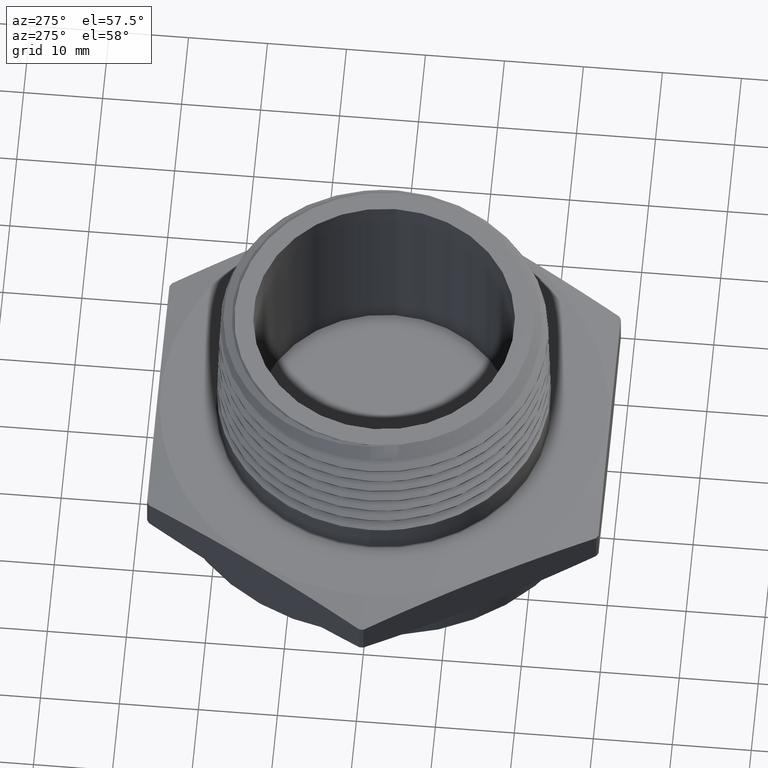
[diagram: clean part render]
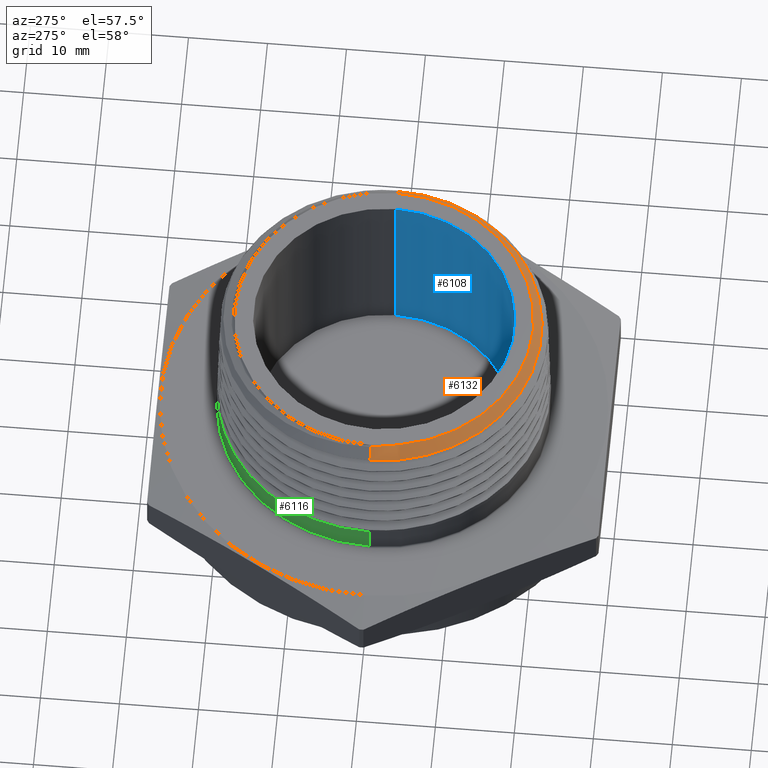
[diagram: same view with three faces highlighted in distinct colors, each labeled with its STEP entity id]
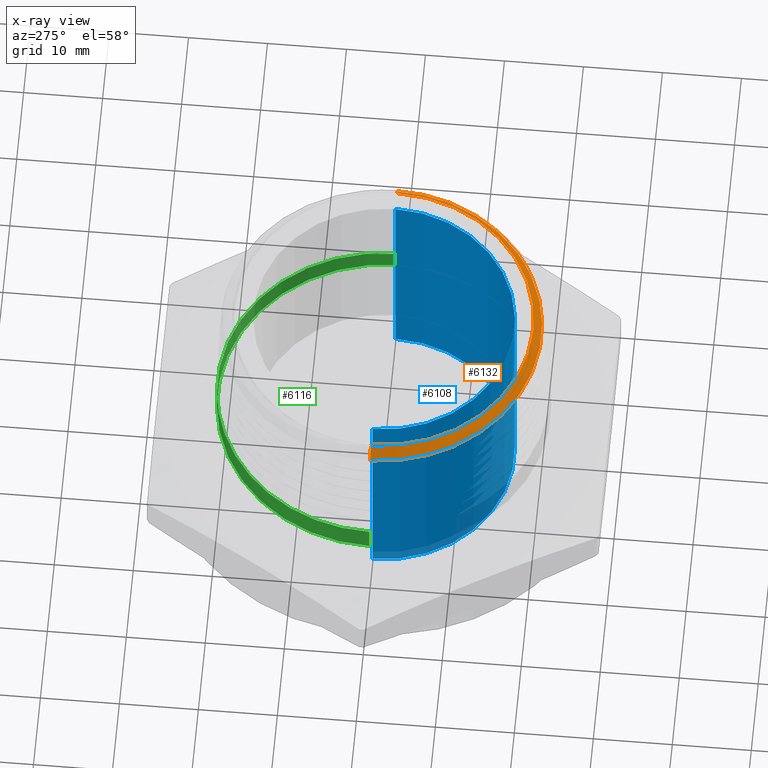
[diagram: x-ray of the same camera — body ghosted, the three highlighted faces saturated]
A machine part, auxiliary view with three faces highlighted in distinct colors.
The next image is the same camera in x-ray (body ghosted, the three faces saturated) — at least one of them is partly hidden behind the body in this view.
Their STEP definitions:

[orange] entity #6132 — the highlighted conical surface has half-angle 45 deg.
#27 = EDGE_LOOP ( 'NONE', ( #6029, #5997, #6067, #6080, #6013, #6052, #6060 ) ) ;
#96 = CIRCLE ( 'NONE', #4579, 0.7437499999999986900 ) ;
#102 = LINE ( 'NONE', #3841, #105 ) ;
#105 = VECTOR ( 'NONE', #3836, 39.37007874015748100 ) ;
#163 = LINE ( 'NONE', #4854, #166 ) ;
#165 = LINE ( 'NONE', #4864, #168 ) ;
#166 = VECTOR ( 'NONE', #4855, 39.37007874015748100 ) ;
#168 = VECTOR ( 'NONE', #4865, 39.37007874015748100 ) ;
#252 = B_SPLINE_CURVE_WITH_KNOTS ( 'NONE', 3,
 ( #4849, #4850, #4858, #4859 ),
 .UNSPECIFIED., .F., .F.,
 ( 4, 4 ),
 ( 0.0000000000000000000, 0.003072509283239645500 ),
 .UNSPECIFIED. ) ;
#253 = B_SPLINE_CURVE_WITH_KNOTS ( 'NONE', 3,
 ( #4857, #4856, #4862, #4863 ),
 .UNSPECIFIED., .F., .F.,
 ( 4, 4 ),
 ( 0.001635234342632144200, 0.004697026341895211800 ),
 .UNSPECIFIED. ) ;
#322 = CARTESIAN_POINT ( 'NONE',  ( -0.7437499999999986900, 0.0000000000000000000, 1.050000000000000000 ) ) ;
#329 = CARTESIAN_POINT ( 'NONE',  ( 0.7437499999999986900, 9.455255948274490100E-017, 1.050000000000000000 ) ) ;
#330 = CARTESIAN_POINT ( 'NONE',  ( -0.7350816407592215600, -0.1199707348374403300, 1.048942645176817300 ) ) ;
#332 = CARTESIAN_POINT ( 'NONE',  ( 0.7720989249177884200, 7.261560096844965400E-016, 1.021651075082210800 ) ) ;
#334 = CARTESIAN_POINT ( 'NONE',  ( -0.7448657824945851300, -1.153870544189449900E-012, 1.048884217505413600 ) ) ;
#336 = CARTESIAN_POINT ( 'NONE',  ( -0.7500252292204397900, -1.306323699306776900E-013, 1.043724770779559200 ) ) ;
#337 = CARTESIAN_POINT ( 'NONE',  ( -0.8000725450993546600, -2.945273618169283600E-016, 0.9936774549006445200 ) ) ;
#926 = DIRECTION ( 'NONE',  ( -1.000000000000000000, 0.0000000000000000000, 0.0000000000000000000 ) ) ;
#927 = CARTESIAN_POINT ( 'NONE',  ( 0.0000000000000000000, 0.0000000000000000000, 0.9684672068725388400 ) ) ;
#928 = DIRECTION ( 'NONE',  ( -0.0000000000000000000, -0.0000000000000000000, -1.000000000000000000 ) ) ;
#1032 = FACE_OUTER_BOUND ( 'NONE', #27, .T. ) ;
#1062 = CONICAL_SURFACE ( 'NONE', #2778, 0.8252827931274610000, 0.7853981633974541600 ) ;
#1589 = CARTESIAN_POINT ( 'NONE',  ( 0.6140114442139216200, -0.4805881770603531700, 1.015736879004241100 ) ) ;
#2778 = AXIS2_PLACEMENT_3D ( 'NONE', #927, #928, #926 ) ;
#3836 = DIRECTION ( 'NONE',  ( 0.7071067811865516800, 8.659560562354983400E-017, -0.7071067811865433500 ) ) ;
#3837 = CARTESIAN_POINT ( 'NONE',  ( 0.0000000000000000000, 0.0000000000000000000, 1.050000000000000000 ) ) ;
#3838 = DIRECTION ( 'NONE',  ( -0.0000000000000000000, -0.0000000000000000000, -1.000000000000000000 ) ) ;
#3839 = DIRECTION ( 'NONE',  ( -1.000000000000000000, 0.0000000000000000000, 0.0000000000000000000 ) ) ;
#3841 = CARTESIAN_POINT ( 'NONE',  ( 0.8252827931274610000, 1.010679930994932300E-016, 0.9684672068725388400 ) ) ;
#4249 = VERTEX_POINT ( 'NONE', #322 ) ;
#4256 = VERTEX_POINT ( 'NONE', #329 ) ;
#4257 = VERTEX_POINT ( 'NONE', #330 ) ;
#4259 = VERTEX_POINT ( 'NONE', #332 ) ;
#4261 = VERTEX_POINT ( 'NONE', #334 ) ;
#4263 = VERTEX_POINT ( 'NONE', #336 ) ;
#4264 = VERTEX_POINT ( 'NONE', #337 ) ;
#4474 = EDGE_CURVE ( 'NONE', #4264, #4259, #5971, .T. ) ;
#4493 = EDGE_CURVE ( 'NONE', #4256, #4249, #96, .T. ) ;
#4495 = EDGE_CURVE ( 'NONE', #4256, #4259, #102, .T. ) ;
#4549 = EDGE_CURVE ( 'NONE', #4263, #4264, #163, .T. ) ;
#4550 = EDGE_CURVE ( 'NONE', #4257, #4263, #252, .T. ) ;
#4551 = EDGE_CURVE ( 'NONE', #4261, #4257, #253, .T. ) ;
#4552 = EDGE_CURVE ( 'NONE', #4249, #4261, #165, .T. ) ;
#4579 = AXIS2_PLACEMENT_3D ( 'NONE', #3837, #3838, #3839 ) ;
#4849 = CARTESIAN_POINT ( 'NONE',  ( -0.7350816407592215600, -0.1199707348374403300, 1.048942645176817300 ) ) ;
#4850 = CARTESIAN_POINT ( 'NONE',  ( -0.7433365841890087200, -0.08029810545622517700, 1.047185811208313900 ) ) ;
#4854 = CARTESIAN_POINT ( 'NONE',  ( -0.8252827931274610000, 0.0000000000000000000, 0.9684672068725388400 ) ) ;
#4855 = DIRECTION ( 'NONE',  ( -0.7071067811865516800, 0.0000000000000000000, -0.7071067811865433500 ) ) ;
#4856 = CARTESIAN_POINT ( 'NONE',  ( -0.7448466354825504800, -0.04015589362925806700, 1.048903364517386200 ) ) ;
#4857 = CARTESIAN_POINT ( 'NONE',  ( -0.7448657824945851300, -1.153870544189449900E-012, 1.048884217505413600 ) ) ;
#4858 = CARTESIAN_POINT ( 'NONE',  ( -0.7482915950761124300, -0.04030481071349607800, 1.045458404923879500 ) ) ;
#4859 = CARTESIAN_POINT ( 'NONE',  ( -0.7500252292204397900, -1.306323699306776900E-013, 1.043724770779559200 ) ) ;
#4862 = CARTESIAN_POINT ( 'NONE',  ( -0.7415704726945593400, -0.08031670776837623900, 1.048925864383003700 ) ) ;
#4863 = CARTESIAN_POINT ( 'NONE',  ( -0.7350816407592215600, -0.1199707348374403300, 1.048942645176817300 ) ) ;
#4864 = CARTESIAN_POINT ( 'NONE',  ( -0.8252827931274610000, 0.0000000000000000000, 0.9684672068725388400 ) ) ;
#4865 = DIRECTION ( 'NONE',  ( -0.7071067811865516800, 0.0000000000000000000, -0.7071067811865433500 ) ) ;
#5971 = B_SPLINE_CURVE_WITH_KNOTS ( 'NONE', 3,
 ( #6392, #6393, #6429, #6430, #6431, #6432, #6433, #6434, #6435, #6436, #6437, #6438, #6439, #6440, #6441, #6442, #6443, #6444, #6445, #6446, #6447, #6448, #6449, #6450, #6451, #6452, #6453, #6454, #6455, #6456, #6457, #6458, #6459, #6460, #6461, #6462, #6463, #6464, #6465, #6466, #1589, #6785, #6786, #6787, #6788, #6789, #6790, #6791, #6792, #6793, #6794, #6795, #6796, #6797 ),
 .UNSPECIFIED., .F., .F.,
 ( 4, 2, 2, 2, 2, 2, 2, 2, 2, 2, 2, 2, 2, 2, 2, 2, 2, 2, 2, 2, 2, 2, 2, 2, 2, 2, 4 ),
 ( 0.03373885606067497000, 0.03767705657792178000, 0.03964615683654518200, 0.04161525709516858400, 0.04358435735379199300, 0.04555345761241539500, 0.04949165812966221900, 0.05146075838828562100, 0.05342985864690903700, 0.05736805916415586800, 0.05933715942277927000, 0.06130625968140268600, 0.06524446019864951800, 0.06721356045727293300, 0.06918266071589633500, 0.07115176097451975100, 0.07312086123314318100, 0.07705906175039001200, 0.07902816200901341400, 0.08099726226763684400, 0.08493546278488367500, 0.08690456304350710500, 0.08887366330213050700, 0.09084276356075393600, 0.09182731369006563700, 0.09281186381937735200, 0.09675006433662419700 ),
 .UNSPECIFIED. ) ;
#5997 = ORIENTED_EDGE ( 'NONE', *, *, #4493, .T. ) ;
#6013 = ORIENTED_EDGE ( 'NONE', *, *, #4550, .T. ) ;
#6029 = ORIENTED_EDGE ( 'NONE', *, *, #4495, .F. ) ;
#6052 = ORIENTED_EDGE ( 'NONE', *, *, #4549, .T. ) ;
#6060 = ORIENTED_EDGE ( 'NONE', *, *, #4474, .T. ) ;
#6067 = ORIENTED_EDGE ( 'NONE', *, *, #4552, .T. ) ;
#6080 = ORIENTED_EDGE ( 'NONE', *, *, #4551, .T. ) ;
#6132 = ADVANCED_FACE ( 'NONE', ( #1032 ), #1062, .T. ) ;
#6392 = CARTESIAN_POINT ( 'NONE',  ( -0.8000725450993546600, -2.945273618169283600E-016, 0.9936774549006445200 ) ) ;
#6393 = CARTESIAN_POINT ( 'NONE',  ( -0.7995010394934186600, -0.05135125499814624500, 0.9942489605065807400 ) ) ;
#6429 = CARTESIAN_POINT ( 'NONE',  ( -0.7940340887413702700, -0.1024069163434764600, 0.9948185086998861900 ) ) ;
#6430 = CARTESIAN_POINT ( 'NONE',  ( -0.7782702435371777700, -0.1785335459317709500, 0.9956852449227142600 ) ) ;
#6431 = CARTESIAN_POINT ( 'NONE',  ( -0.7717736674808471900, -0.2036417803274090700, 0.9959754583561712900 ) ) ;
#6432 = CARTESIAN_POINT ( 'NONE',  ( -0.7565183437960714100, -0.2527233594338484900, 0.9965494281946676300 ) ) ;
#6433 = CARTESIAN_POINT ( 'NONE',  ( -0.7477401969685372200, -0.2767935613644513200, 0.9968342910240984800 ) ) ;
#6434 = CARTESIAN_POINT ( 'NONE',  ( -0.7279026411649343100, -0.3240007726664148000, 0.9974062770131713100 ) ) ;
#6435 = CARTESIAN_POINT ( 'NONE',  ( -0.7168428438579196300, -0.3471376175476593200, 0.9976938650431600400 ) ) ;
#6436 = CARTESIAN_POINT ( 'NONE',  ( -0.6924043954523126900, -0.3924627504514535100, 0.9982702459967631700 ) ) ;
#6437 = CARTESIAN_POINT ( 'NONE',  ( -0.6789407664004574200, -0.4147687249460877400, 0.9985605984621880300 ) ) ;
#6438 = CARTESIAN_POINT ( 'NONE',  ( -0.6356831047645040700, -0.4790867144281957800, 0.9994281577965273800 ) ) ;
#6439 = CARTESIAN_POINT ( 'NONE',  ( -0.6030797548661849200, -0.5186164357168986400, 1.000001002847225900 ) ) ;
#6440 = CARTESIAN_POINT ( 'NONE',  ( -0.5486425524703911800, -0.5729898921742933000, 1.000863889007945300 ) ) ;
#6441 = CARTESIAN_POINT ( 'NONE',  ( -0.5295670262320041300, -0.5902872581388665100, 1.001153903944223200 ) ) ;
#6442 = CARTESIAN_POINT ( 'NONE',  ( -0.4894981070565390100, -0.6231759356478403500, 1.001736785039513800 ) ) ;
#6443 = CARTESIAN_POINT ( 'NONE',  ( -0.4686744645534644000, -0.6386154498233583800, 1.002026999532649800 ) ) ;
#6444 = CARTESIAN_POINT ( 'NONE',  ( -0.4045976601359592100, -0.6814657327958765200, 1.002893335661676500 ) ) ;
#6445 = CARTESIAN_POINT ( 'NONE',  ( -0.3594712077528927600, -0.7056763466819755400, 1.003468585243130900 ) ) ;
#6446 = CARTESIAN_POINT ( 'NONE',  ( -0.2881359676426911200, -0.7353985297403844400, 1.004338923213130800 ) ) ;
#6447 = CARTESIAN_POINT ( 'NONE',  ( -0.2636078107376989600, -0.7442324936766820900, 1.004633808345518400 ) ) ;
#6448 = CARTESIAN_POINT ( 'NONE',  ( -0.2142148687681867900, -0.7593173182223917900, 1.005217133748406200 ) ) ;
#6449 = CARTESIAN_POINT ( 'NONE',  ( -0.1893072990659328800, -0.7656027016200678300, 1.005506027837716600 ) ) ;
#6450 = CARTESIAN_POINT ( 'NONE',  ( -0.1139648589991535100, -0.7807679318557804200, 1.006373476174577500 ) ) ;
#6451 = CARTESIAN_POINT ( 'NONE',  ( -0.06291636317491269800, -0.7859932417524542200, 1.006952488512338400 ) ) ;
#6452 = CARTESIAN_POINT ( 'NONE',  ( 0.01493704495547304300, -0.7862032535187518700, 1.007833152638050600 ) ) ;
#6453 = CARTESIAN_POINT ( 'NONE',  ( 0.04076231590646407100, -0.7849850354311391800, 1.008126884703635500 ) ) ;
#6454 = CARTESIAN_POINT ( 'NONE',  ( 0.09188691878156923800, -0.7800670717165672000, 1.008709587499656100 ) ) ;
#6455 = CARTESIAN_POINT ( 'NONE',  ( 0.1172332296899092900, -0.7763674585781188400, 1.008998946575379000 ) ) ;
#6456 = CARTESIAN_POINT ( 'NONE',  ( 0.1674962650438669400, -0.7665011202537386200, 1.009579660646132200 ) ) ;
#6457 = CARTESIAN_POINT ( 'NONE',  ( 0.1924128379446779200, -0.7603335853497288400, 1.009871927844164600 ) ) ;
#6458 = CARTESIAN_POINT ( 'NONE',  ( 0.2418073867457303000, -0.7454796509809499300, 1.010458423955977100 ) ) ;
#6459 = CARTESIAN_POINT ( 'NONE',  ( 0.2663854605241271500, -0.7367408108859333500, 1.010753745223245100 ) ) ;
#6460 = CARTESIAN_POINT ( 'NONE',  ( 0.3379126396251531100, -0.7072358151988879000, 1.011632971492044500 ) ) ;
#6461 = CARTESIAN_POINT ( 'NONE',  ( 0.3831082642191601700, -0.6831276612361127900, 1.012214708073295100 ) ) ;
#6462 = CARTESIAN_POINT ( 'NONE',  ( 0.4472094830873277200, -0.6403825001561148600, 1.013092209744603600 ) ) ;
#6463 = CARTESIAN_POINT ( 'NONE',  ( 0.4679974119653489400, -0.6249931683186620300, 1.013388045679300700 ) ) ;
#6464 = CARTESIAN_POINT ( 'NONE',  ( 0.5081093566482232100, -0.5920626902193758500, 1.013980746205498600 ) ) ;
#6465 = CARTESIAN_POINT ( 'NONE',  ( 0.5271830672916592000, -0.5747342995481530300, 1.014273747880568800 ) ) ;
#6466 = CARTESIAN_POINT ( 'NONE',  ( 0.5815479684540386700, -0.5202393922710533100, 1.015152562750432300 ) ) ;
#6785 = CARTESIAN_POINT ( 'NONE',  ( 0.6569054180533890900, -0.4160140446794835500, 1.016624041509416300 ) ) ;
#6786 = CARTESIAN_POINT ( 'NONE',  ( 0.6702188703207920800, -0.3936101436854554400, 1.016923501535428800 ) ) ;
#6787 = CARTESIAN_POINT ( 'NONE',  ( 0.6942912565249693700, -0.3480870548169053300, 1.017514162133252600 ) ) ;
#6788 = CARTESIAN_POINT ( 'NONE',  ( 0.7051366861076632200, -0.3248468621399380800, 1.017807013635724200 ) ) ;
#6789 = CARTESIAN_POINT ( 'NONE',  ( 0.7244781737496215300, -0.2774221900850753500, 1.018394607975132900 ) ) ;
#6790 = CARTESIAN_POINT ( 'NONE',  ( 0.7329737858210986200, -0.2532375373375131400, 1.018689824709823300 ) ) ;
#6791 = CARTESIAN_POINT ( 'NONE',  ( 0.7439322965675798600, -0.2162431382243837900, 1.019133339785908100 ) ) ;
#6792 = CARTESIAN_POINT ( 'NONE',  ( 0.7472870496545094300, -0.2037918617576629800, 1.019281355391039100 ) ) ;
#6793 = CARTESIAN_POINT ( 'NONE',  ( 0.7533890235821915100, -0.1786451284370262100, 1.019578360923202800 ) ) ;
#6794 = CARTESIAN_POINT ( 'NONE',  ( 0.7561402299660628900, -0.1659213765424134300, 1.019727679018047000 ) ) ;
#6795 = CARTESIAN_POINT ( 'NONE',  ( 0.7682182195991190700, -0.1023634847434561800, 1.020471808845154100 ) ) ;
#6796 = CARTESIAN_POINT ( 'NONE',  ( 0.7726904494513401300, -0.05129167824074307900, 1.021059550548659300 ) ) ;
#6797 = CARTESIAN_POINT ( 'NONE',  ( 0.7720989249177884200, 7.261560096844965400E-016, 1.021651075082210800 ) ) ;

[blue] entity #6108 — the highlighted cylindrical surface (partial cylindrical patch) has radius 16.51 mm, axis along (0, 0, -1).
#36 = EDGE_LOOP ( 'NONE', ( #6055, #6085, #6083, #6070 ) ) ;
#154 = CIRCLE ( 'NONE', #4606, 0.6500000000000000200 ) ;
#155 = LINE ( 'NONE', #4825, #157 ) ;
#157 = VECTOR ( 'NONE', #4832, 39.37007874015748100 ) ;
#159 = CIRCLE ( 'NONE', #4607, 0.6500000000000000200 ) ;
#162 = LINE ( 'NONE', #4844, #164 ) ;
#164 = VECTOR ( 'NONE', #4845, 39.37007874015748100 ) ;
#286 = CARTESIAN_POINT ( 'NONE',  ( -0.6500000000000000200, 0.0000000000000000000, 1.050000000000000000 ) ) ;
#287 = CARTESIAN_POINT ( 'NONE',  ( -0.6500000000000000200, 0.0000000000000000000, -0.1499999999999999900 ) ) ;
#852 = DIRECTION ( 'NONE',  ( -1.000000000000000000, 0.0000000000000000000, 0.0000000000000000000 ) ) ;
#853 = CARTESIAN_POINT ( 'NONE',  ( 3.673940397442165500E-018, 0.0000000000000000000, 2.973330444827409400 ) ) ;
#854 = DIRECTION ( 'NONE',  ( 0.0000000000000000000, 0.0000000000000000000, -1.000000000000000000 ) ) ;
#1010 = FACE_OUTER_BOUND ( 'NONE', #36, .T. ) ;
#1013 = CYLINDRICAL_SURFACE ( 'NONE', #4656, 0.6500000000000000200 ) ;
#4183 = VERTEX_POINT ( 'NONE', #7628 ) ;
#4184 = VERTEX_POINT ( 'NONE', #7629 ) ;
#4187 = VERTEX_POINT ( 'NONE', #287 ) ;
#4189 = VERTEX_POINT ( 'NONE', #286 ) ;
#4543 = EDGE_CURVE ( 'NONE', #4189, #4187, #155, .T. ) ;
#4546 = EDGE_CURVE ( 'NONE', #4184, #4187, #154, .T. ) ;
#4547 = EDGE_CURVE ( 'NONE', #4183, #4189, #159, .T. ) ;
#4548 = EDGE_CURVE ( 'NONE', #4183, #4184, #162, .T. ) ;
#4606 = AXIS2_PLACEMENT_3D ( 'NONE', #4846, #4847, #4848 ) ;
#4607 = AXIS2_PLACEMENT_3D ( 'NONE', #4851, #4852, #4853 ) ;
#4656 = AXIS2_PLACEMENT_3D ( 'NONE', #853, #854, #852 ) ;
#4825 = CARTESIAN_POINT ( 'NONE',  ( -0.6500000000000000200, 0.0000000000000000000, 2.973330444827409400 ) ) ;
#4832 = DIRECTION ( 'NONE',  ( 0.0000000000000000000, 0.0000000000000000000, -1.000000000000000000 ) ) ;
#4844 = CARTESIAN_POINT ( 'NONE',  ( 0.6500000000000000200, 7.960204194457796700E-017, 2.973330444827409400 ) ) ;
#4845 = DIRECTION ( 'NONE',  ( 0.0000000000000000000, 0.0000000000000000000, -1.000000000000000000 ) ) ;
#4846 = CARTESIAN_POINT ( 'NONE',  ( 3.673940397442165500E-018, 0.0000000000000000000, -0.1499999999999999900 ) ) ;
#4847 = DIRECTION ( 'NONE',  ( 0.0000000000000000000, 0.0000000000000000000, -1.000000000000000000 ) ) ;
#4848 = DIRECTION ( 'NONE',  ( -1.000000000000000000, 0.0000000000000000000, 0.0000000000000000000 ) ) ;
#4851 = CARTESIAN_POINT ( 'NONE',  ( 3.673940397442165500E-018, 0.0000000000000000000, 1.050000000000000000 ) ) ;
#4852 = DIRECTION ( 'NONE',  ( -0.0000000000000000000, -0.0000000000000000000, -1.000000000000000000 ) ) ;
#4853 = DIRECTION ( 'NONE',  ( 1.000000000000000000, 0.0000000000000000000, 0.0000000000000000000 ) ) ;
#6055 = ORIENTED_EDGE ( 'NONE', *, *, #4547, .F. ) ;
#6070 = ORIENTED_EDGE ( 'NONE', *, *, #4543, .F. ) ;
#6083 = ORIENTED_EDGE ( 'NONE', *, *, #4546, .T. ) ;
#6085 = ORIENTED_EDGE ( 'NONE', *, *, #4548, .T. ) ;
#6108 = ADVANCED_FACE ( 'NONE', ( #1010 ), #1013, .F. ) ;
#7628 = CARTESIAN_POINT ( 'NONE',  ( 0.6500000000000000200, 7.960204194457796700E-017, 1.050000000000000000 ) ) ;
#7629 = CARTESIAN_POINT ( 'NONE',  ( 0.6500000000000000200, 7.960204194457796700E-017, -0.1499999999999999900 ) ) ;

[green] entity #6116 — the highlighted cylindrical surface (partial cylindrical patch) has radius 21.082 mm, axis along (-0, -0, -1).
#45 = EDGE_LOOP ( 'NONE', ( #5948, #5947, #5946, #5945, #5942 ) ) ;
#104 = LINE ( 'NONE', #3958, #112 ) ;
#106 = LINE ( 'NONE', #3961, #114 ) ;
#108 = CIRCLE ( 'NONE', #4581, 0.8300000000000001800 ) ;
#112 = VECTOR ( 'NONE', #3959, 39.37007874015748100 ) ;
#113 = CIRCLE ( 'NONE', #4582, 0.8300000000000001800 ) ;
#114 = VECTOR ( 'NONE', #4693, 39.37007874015748100 ) ;
#245 = B_SPLINE_CURVE_WITH_KNOTS ( 'NONE', 3,
 ( #3903, #3933, #3962, #3963, #3964, #3965, #3966, #3967, #3968, #3969, #3970, #3971, #3972, #3973, #3974, #3975, #3976, #3977, #4673, #4674, #4675, #4676, #4677, #4678, #4679, #4680, #4681, #4682, #4683, #4684, #4685, #4686, #4687, #4688, #4689, #4690, #4691, #4692 ),
 .UNSPECIFIED., .F., .F.,
 ( 4, 2, 2, 2, 2, 2, 2, 2, 2, 2, 2, 2, 2, 2, 2, 2, 2, 2, 4 ),
 ( 0.0000000000000000000, 0.002588556071354502300, 0.005177112142709004500, 0.01035422428541801300, 0.01164850232109526300, 0.01294278035677251400, 0.01553133642812702000, 0.01811989249948152400, 0.01941417053515878000, 0.02070844857083603200, 0.02329700464219053600, 0.02459128267786778900, 0.02588556071354503700, 0.03106267285625404600, 0.03235695089193130200, 0.03365122892760855100, 0.03623978499896304800, 0.03882834107031755300, 0.04141689714167205700 ),
 .UNSPECIFIED. ) ;
#876 = DIRECTION ( 'NONE',  ( -1.000000000000000000, 0.0000000000000000000, 0.0000000000000000000 ) ) ;
#877 = CARTESIAN_POINT ( 'NONE',  ( 0.0000000000000000000, 0.0000000000000000000, 1.050000000000000000 ) ) ;
#878 = DIRECTION ( 'NONE',  ( -0.0000000000000000000, -0.0000000000000000000, -1.000000000000000000 ) ) ;
#1021 = CYLINDRICAL_SURFACE ( 'NONE', #4664, 0.8300000000000001800 ) ;
#1026 = FACE_OUTER_BOUND ( 'NONE', #45, .T. ) ;
#3903 = CARTESIAN_POINT ( 'NONE',  ( 0.8300000000000001800, 1.219748211950763400E-015, 0.3550142751956655300 ) ) ;
#3930 = CARTESIAN_POINT ( 'NONE',  ( 0.0000000000000000000, 0.0000000000000000000, 0.3816959141941737000 ) ) ;
#3931 = DIRECTION ( 'NONE',  ( 0.0000000000000000000, 0.0000000000000000000, 1.000000000000000000 ) ) ;
#3932 = DIRECTION ( 'NONE',  ( -1.000000000000000000, -1.776356839400250500E-015, 0.0000000000000000000 ) ) ;
#3933 = CARTESIAN_POINT ( 'NONE',  ( 0.8299999999999998500, 0.03412830706201389800, 0.3555749275998649200 ) ) ;
#3958 = CARTESIAN_POINT ( 'NONE',  ( -0.8300000000000001800, 0.0000000000000000000, 1.050000000000000000 ) ) ;
#3959 = DIRECTION ( 'NONE',  ( -0.0000000000000000000, -0.0000000000000000000, -1.000000000000000000 ) ) ;
#3961 = CARTESIAN_POINT ( 'NONE',  ( 0.8300000000000001800, 1.016456843292303400E-016, 1.050000000000000000 ) ) ;
#3962 = CARTESIAN_POINT ( 'NONE',  ( 0.8279030328178658100, 0.06805141646068850500, 0.3561298763878174600 ) ) ;
#3963 = CARTESIAN_POINT ( 'NONE',  ( 0.8195707694357931000, 0.1354923647950229400, 0.3572476541364512100 ) ) ;
#3964 = CARTESIAN_POINT ( 'NONE',  ( 0.8132811179651862100, 0.1691793094637481800, 0.3578105581653913100 ) ) ;
#3965 = CARTESIAN_POINT ( 'NONE',  ( 0.7885401969314737000, 0.2677603782873971300, 0.3594767922507005100 ) ) ;
#3966 = CARTESIAN_POINT ( 'NONE',  ( 0.7643531961342624500, 0.3305514519989660700, 0.3605754723344001800 ) ) ;
#3967 = CARTESIAN_POINT ( 'NONE',  ( 0.7244756459899368600, 0.4053671703482766300, 0.3619681195430459700 ) ) ;
#3968 = CARTESIAN_POINT ( 'NONE',  ( 0.7159793345822342800, 0.4201940502135490000, 0.3622492792574661400 ) ) ;
#3969 = CARTESIAN_POINT ( 'NONE',  ( 0.6981590857080106600, 0.4491807413803937100, 0.3628094408569188500 ) ) ;
#3970 = CARTESIAN_POINT ( 'NONE',  ( 0.6888451603574972100, 0.4633331069596448000, 0.3630879231764484500 ) ) ;
#3971 = CARTESIAN_POINT ( 'NONE',  ( 0.6597184066908004000, 0.5047895756497420300, 0.3639187764546766300 ) ) ;
#3972 = CARTESIAN_POINT ( 'NONE',  ( 0.6387249119299185400, 0.5310966229121986100, 0.3644697309341952100 ) ) ;
#3973 = CARTESIAN_POINT ( 'NONE',  ( 0.5936188095174699300, 0.5810764536407288000, 0.3655779791103762600 ) ) ;
#3974 = CARTESIAN_POINT ( 'NONE',  ( 0.5695064430780826200, 0.6047495280422964200, 0.3661312348034521100 ) ) ;
#3975 = CARTESIAN_POINT ( 'NONE',  ( 0.5309166702713182800, 0.6382142150733749500, 0.3669691575058673400 ) ) ;
#3976 = CARTESIAN_POINT ( 'NONE',  ( 0.5176818084534253700, 0.6489936003758297600, 0.3672495083918204100 ) ) ;
#3977 = CARTESIAN_POINT ( 'NONE',  ( 0.4907615019608902500, 0.6695821804121445700, 0.3678072071607682600 ) ) ;
#4190 = VERTEX_POINT ( 'NONE', #7631 ) ;
#4193 = VERTEX_POINT ( 'NONE', #7634 ) ;
#4216 = VERTEX_POINT ( 'NONE', #7657 ) ;
#4220 = VERTEX_POINT ( 'NONE', #7661 ) ;
#4221 = VERTEX_POINT ( 'NONE', #7662 ) ;
#4499 = EDGE_CURVE ( 'NONE', #4221, #4216, #108, .T. ) ;
#4502 = EDGE_CURVE ( 'NONE', #4216, #4190, #104, .T. ) ;
#4503 = EDGE_CURVE ( 'NONE', #4220, #4221, #245, .T. ) ;
#4504 = EDGE_CURVE ( 'NONE', #4220, #4193, #106, .T. ) ;
#4505 = EDGE_CURVE ( 'NONE', #4193, #4190, #113, .T. ) ;
#4581 = AXIS2_PLACEMENT_3D ( 'NONE', #3930, #3931, #3932 ) ;
#4582 = AXIS2_PLACEMENT_3D ( 'NONE', #4696, #4697, #4698 ) ;
#4664 = AXIS2_PLACEMENT_3D ( 'NONE', #877, #878, #876 ) ;
#4673 = CARTESIAN_POINT ( 'NONE',  ( 0.4770363896877498100, 0.6794264299771165500, 0.3680854168835723800 ) ) ;
#4674 = CARTESIAN_POINT ( 'NONE',  ( 0.4350792233869414400, 0.7076312830338289400, 0.3689161919403852700 ) ) ;
#4675 = CARTESIAN_POINT ( 'NONE',  ( 0.4060681878691581600, 0.7246688126461947600, 0.3694653904740758900 ) ) ;
#4676 = CARTESIAN_POINT ( 'NONE',  ( 0.3609918441099705900, 0.7475753833503548900, 0.3702969502286184700 ) ) ;
#4677 = CARTESIAN_POINT ( 'NONE',  ( 0.3457057171477294100, 0.7547680821760051100, 0.3705751656731877700 ) ) ;
#4678 = CARTESIAN_POINT ( 'NONE',  ( 0.3146031598547406300, 0.7682526619216385500, 0.3711328522753186100 ) ) ;
#4679 = CARTESIAN_POINT ( 'NONE',  ( 0.2987333155962976800, 0.7745631707148711300, 0.3714127284646475700 ) ) ;
#4680 = CARTESIAN_POINT ( 'NONE',  ( 0.2187201973181393500, 0.8035525270233488900, 0.3728078165230518900 ) ) ;
#4681 = CARTESIAN_POINT ( 'NONE',  ( 0.1530942621256596900, 0.8185520685112488400, 0.3739071931000878000 ) ) ;
#4682 = CARTESIAN_POINT ( 'NONE',  ( 0.06908854892860395700, 0.8272920320415458900, 0.3752942357378105100 ) ) ;
#4683 = CARTESIAN_POINT ( 'NONE',  ( 0.05218736474879563000, 0.8285325089304441700, 0.3755729825764586600 ) ) ;
#4684 = CARTESIAN_POINT ( 'NONE',  ( 0.01818036943758721500, 0.8299753692496620900, 0.3761333371448747400 ) ) ;
#4685 = CARTESIAN_POINT ( 'NONE',  ( 0.001100455787004169700, 0.8301723539990060200, 0.3764142707766205400 ) ) ;
#4686 = CARTESIAN_POINT ( 'NONE',  ( -0.04974433052219053000, 0.8292013597249212600, 0.3772483854733332800 ) ) ;
#4687 = CARTESIAN_POINT ( 'NONE',  ( -0.08334427169489544400, 0.8264899557653184700, 0.3777999204175462900 ) ) ;
#4688 = CARTESIAN_POINT ( 'NONE',  ( -0.1499642470993244000, 0.8170328262666337600, 0.3789074752732919900 ) ) ;
#4689 = CARTESIAN_POINT ( 'NONE',  ( -0.1829843417880509500, 0.8102870733654780100, 0.3794596327354426400 ) ) ;
#4690 = CARTESIAN_POINT ( 'NONE',  ( -0.2484318522038941900, 0.7926727101479776900, 0.3805712653205702800 ) ) ;
#4691 = CARTESIAN_POINT ( 'NONE',  ( -0.2809024394067924900, 0.7817663080767171000, 0.3811348830278129500 ) ) ;
#4692 = CARTESIAN_POINT ( 'NONE',  ( -0.3125190622014809000, 0.7689160134635688600, 0.3816959141941736500 ) ) ;
#4693 = DIRECTION ( 'NONE',  ( -0.0000000000000000000, -0.0000000000000000000, -1.000000000000000000 ) ) ;
#4696 = CARTESIAN_POINT ( 'NONE',  ( 0.0000000000000000000, 0.0000000000000000000, 0.2499999999999999200 ) ) ;
#4697 = DIRECTION ( 'NONE',  ( -0.0000000000000000000, 0.0000000000000000000, 1.000000000000000000 ) ) ;
#4698 = DIRECTION ( 'NONE',  ( 1.000000000000000000, 0.0000000000000000000, 0.0000000000000000000 ) ) ;
#5942 = ORIENTED_EDGE ( 'NONE', *, *, #4499, .F. ) ;
#5945 = ORIENTED_EDGE ( 'NONE', *, *, #4502, .F. ) ;
#5946 = ORIENTED_EDGE ( 'NONE', *, *, #4505, .T. ) ;
#5947 = ORIENTED_EDGE ( 'NONE', *, *, #4504, .T. ) ;
#5948 = ORIENTED_EDGE ( 'NONE', *, *, #4503, .F. ) ;
#6116 = ADVANCED_FACE ( 'NONE', ( #1026 ), #1021, .T. ) ;
#7631 = CARTESIAN_POINT ( 'NONE',  ( -0.8300000000000001800, 0.0000000000000000000, 0.2499999999999999200 ) ) ;
#7634 = CARTESIAN_POINT ( 'NONE',  ( 0.8300000000000001800, 1.016456843292303400E-016, 0.2499999999999999200 ) ) ;
#7657 = CARTESIAN_POINT ( 'NONE',  ( -0.8300000000000001800, 0.0000000000000000000, 0.3816959141941737000 ) ) ;
#7661 = CARTESIAN_POINT ( 'NONE',  ( 0.8300000000000001800, 1.219748211950763400E-015, 0.3550142751956655300 ) ) ;
#7662 = CARTESIAN_POINT ( 'NONE',  ( -0.3125190622014809000, 0.7689160134635688600, 0.3816959141941736500 ) ) ;